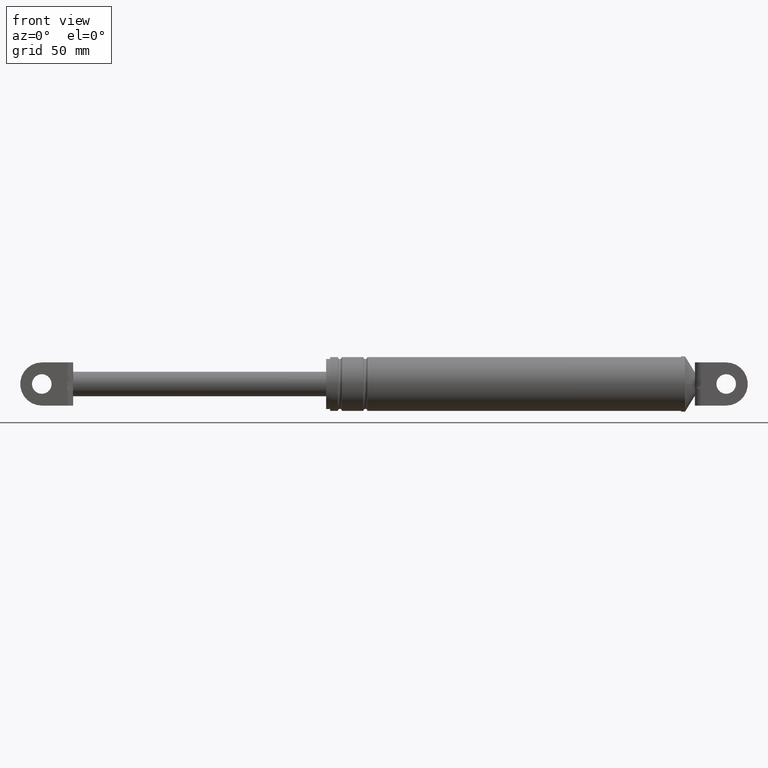
[diagram: clean part render]
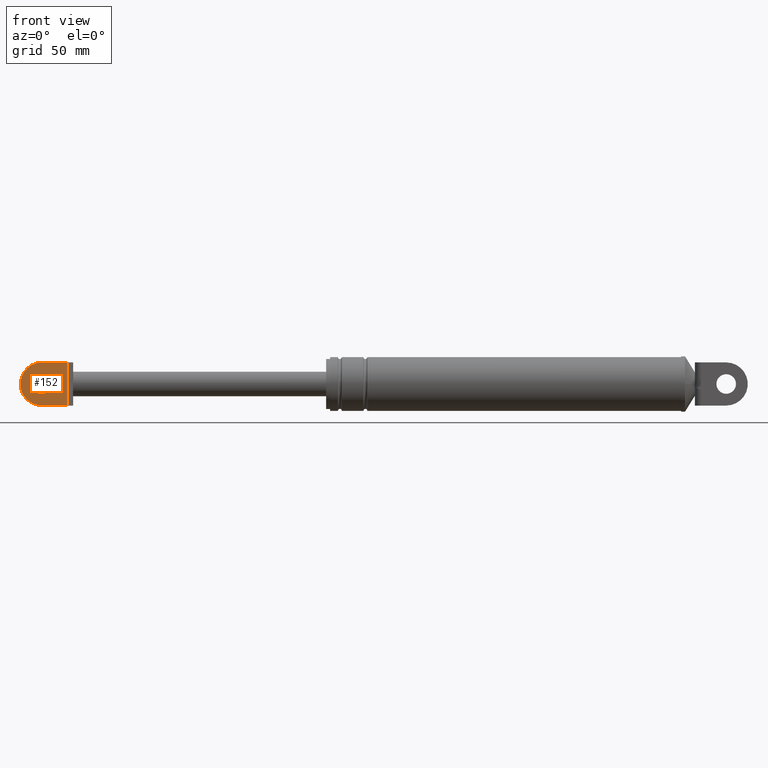
[diagram: same view with one face highlighted and labeled with its STEP entity id]
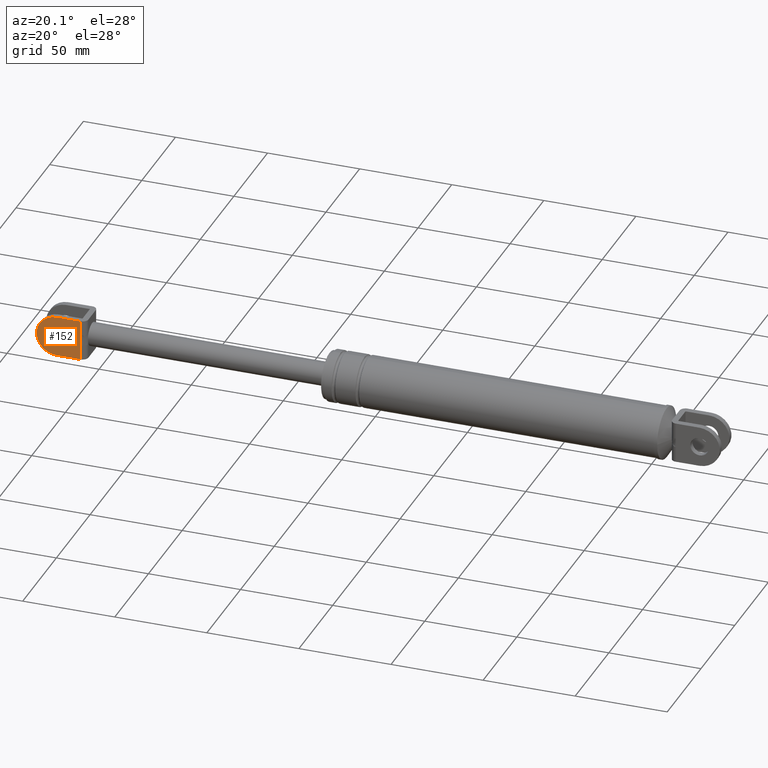
[diagram: same view with one face highlighted and labeled with its STEP entity id]
A machine part, front view. The second image highlights one B-rep face of the part: STEP entity #152.
A second angle (auxiliary view) of the same face is appended — the face is thin or edge-on in the first view.
In plain terms, the highlighted planar face has unit normal (0, -1, 0).
Its self-contained STEP definition (entity closure, byte-faithful):
#152=ADVANCED_FACE('',(#583,#584),#582,.T.);
#582=PLANE('',#1223);
#583=FACE_OUTER_BOUND('',#1224,.T.);
#584=FACE_BOUND('',#1225,.T.);
#1220=CARTESIAN_POINT('',(1.68369951810E+001,-8.69999700000E+000,1.90570805655E+002));
#1221=DIRECTION('',(0.00000000000E+000,-1.00000000000E+000,0.00000000000E+000));
#1222=DIRECTION('',(0.00000000000E+000,0.00000000000E+000,-1.00000000000E+000));
#1223=AXIS2_PLACEMENT_3D('',#1220,#1221,#1222);
#1224=EDGE_LOOP('',(#1588,#1589,#1590,#1591,#1592,#1593));
#1225=EDGE_LOOP('',(#1594,#1595));
#1588=ORIENTED_EDGE('',*,*,#1808,.F.);
#1589=ORIENTED_EDGE('',*,*,#1809,.T.);
#1590=ORIENTED_EDGE('',*,*,#1810,.T.);
#1591=ORIENTED_EDGE('',*,*,#1811,.T.);
#1592=ORIENTED_EDGE('',*,*,#1812,.T.);
#1593=ORIENTED_EDGE('',*,*,#1813,.T.);
#1594=ORIENTED_EDGE('',*,*,#1814,.F.);
#1595=ORIENTED_EDGE('',*,*,#1815,.F.);
#1808=EDGE_CURVE('',#2506,#2507,#2508,.T.);
#1809=EDGE_CURVE('',#2506,#2514,#2515,.T.);
#1810=EDGE_CURVE('',#2514,#2521,#2522,.T.);
#1811=EDGE_CURVE('',#2521,#2528,#2529,.T.);
#1812=EDGE_CURVE('',#2528,#2535,#2536,.T.);
#1813=EDGE_CURVE('',#2535,#2507,#2542,.T.);
#1814=EDGE_CURVE('',#2548,#2549,#2550,.T.);
#1815=EDGE_CURVE('',#2549,#2548,#2556,.T.);
#2506=VERTEX_POINT('',#3324);
#2507=VERTEX_POINT('',#3325);
#2508=LINE('',#3326,#3327);
#2514=VERTEX_POINT('',#3329);
#2515=LINE('',#3330,#3331);
#2521=VERTEX_POINT('',#3333);
#2522=(BOUNDED_CURVE() B_SPLINE_CURVE(3,(#3334,#3335,#3336,#3337,#3338,#3339,#3340,#3341,#3342,#3343),.UNSPECIFIED.,.F.,.F.) B_SPLINE_CURVE_WITH_KNOTS((4,2,2,2,4),(0.00000000000E+000,1.48458878572E-003,2.96917757145E-003,4.45376635717E-003,5.93835514290E-003),.UNSPECIFIED.) CURVE() GEOMETRIC_REPRESENTATION_ITEM() RATIONAL_B_SPLINE_CURVE((1.00000000000E+000,1.00000000000E+000,1.00000000000E+000,1.00000000000E+000,1.00000000000E+000,1.00000000000E+000,1.00000000000E+000,1.00000000000E+000,1.00000000000E+000,1.00000000000E+000)) REPRESENTATION_ITEM('') );
#2528=VERTEX_POINT('',#3344);
#2529=LINE('',#3345,#3346);
#2535=VERTEX_POINT('',#3348);
#2536=LINE('',#3349,#3350);
#2542=CIRCLE('',#3355,1.10000000000E+001);
#2548=VERTEX_POINT('',#3356);
#2549=VERTEX_POINT('',#3357);
#2550=CIRCLE('',#3361,5.00000000000E+000);
#2556=CIRCLE('',#3365,5.00000000000E+000);
#3324=CARTESIAN_POINT('',(4.30259114227E+001,-8.69999700000E+000,1.66370805655E+002));
#3325=CARTESIAN_POINT('',(3.02259104627E+001,-8.69999700000E+000,1.66370805655E+002));
#3326=CARTESIAN_POINT('',(4.30259114227E+001,-8.69999700000E+000,1.66370805655E+002));
#3327=VECTOR('',#3328,1.28000009599E+001);
#3328=DIRECTION('',(-1.00000000000E+000,0.00000000000E+000,0.00000000000E+000));
#3329=CARTESIAN_POINT('',(4.30259114227E+001,-8.69999700000E+000,1.74402214575E+002));
#3330=CARTESIAN_POINT('',(4.30259114227E+001,-8.69999700000E+000,1.66370805655E+002));
#3331=VECTOR('',#3332,8.03140892004E+000);
#3332=DIRECTION('',(0.00000000000E+000,0.00000000000E+000,1.00000000000E+000));
#3333=CARTESIAN_POINT('',(4.30259114227E+001,-8.69999700000E+000,1.80339396735E+002));
#3334=CARTESIAN_POINT('',(4.30259114227E+001,-8.69999700000E+000,1.74402214575E+002));
#3335=CARTESIAN_POINT('',(4.30259114227E+001,-8.69999700000E+000,1.74897077695E+002));
#3336=CARTESIAN_POINT('',(4.30514511801E+001,-8.69999700000E+000,1.75391384177E+002));
#3337=CARTESIAN_POINT('',(4.30966743184E+001,-8.69999700000E+000,1.76380095651E+002));
#3338=CARTESIAN_POINT('',(4.31150142773E+001,-8.69999700000E+000,1.76874550917E+002));
#3339=CARTESIAN_POINT('',(4.31150738398E+001,-8.69999700000E+000,1.77864314697E+002));
#3340=CARTESIAN_POINT('',(4.30967592183E+001,-8.69999700000E+000,1.78359551671E+002));
#3341=CARTESIAN_POINT('',(4.30515059508E+001,-8.69999700000E+000,1.79349137177E+002));
#3342=CARTESIAN_POINT('',(4.30259114227E+001,-8.69999700000E+000,1.79843828167E+002));
#3343=CARTESIAN_POINT('',(4.30259114227E+001,-8.69999700000E+000,1.80339396735E+002));
#3344=CARTESIAN_POINT('',(4.30259114227E+001,-8.69999700000E+000,1.88370805655E+002));
#3345=CARTESIAN_POINT('',(4.30259114227E+001,-8.69999700000E+000,1.80339396735E+002));
#3346=VECTOR('',#3347,8.03140892004E+000);
#3347=DIRECTION('',(0.00000000000E+000,0.00000000000E+000,1.00000000000E+000));
#3348=CARTESIAN_POINT('',(3.02259104627E+001,-8.69999700000E+000,1.88370805655E+002));
#3349=CARTESIAN_POINT('',(4.30259114227E+001,-8.69999700000E+000,1.88370805655E+002));
#3350=VECTOR('',#3351,1.28000009599E+001);
#3351=DIRECTION('',(-1.00000000000E+000,0.00000000000E+000,0.00000000000E+000));
#3352=CARTESIAN_POINT('',(3.02259114227E+001,-8.69999700000E+000,1.77370805655E+002));
#3353=DIRECTION('',(0.00000000000E+000,-1.00000000000E+000,0.00000000000E+000));
#3354=DIRECTION('',(-0.00000000000E+000,-0.00000000000E+000,-1.00000000000E+000));
#3355=AXIS2_PLACEMENT_3D('',#3352,#3353,#3354);
#3356=CARTESIAN_POINT('',(3.02259114227E+001,-8.69999700000E+000,1.72370805655E+002));
#3357=CARTESIAN_POINT('',(3.02259114227E+001,-8.69999700000E+000,1.82370805655E+002));
#3358=CARTESIAN_POINT('',(3.02259114227E+001,-8.69999700000E+000,1.77370805655E+002));
#3359=DIRECTION('',(-0.00000000000E+000,-1.00000000000E+000,0.00000000000E+000));
#3360=DIRECTION('',(-1.22460635382E-016,0.00000000000E+000,1.00000000000E+000));
#3361=AXIS2_PLACEMENT_3D('',#3358,#3359,#3360);
#3362=CARTESIAN_POINT('',(3.02259114227E+001,-8.69999700000E+000,1.77370805655E+002));
#3363=DIRECTION('',(-0.00000000000E+000,-1.00000000000E+000,0.00000000000E+000));
#3364=DIRECTION('',(-1.22460635382E-016,0.00000000000E+000,1.00000000000E+000));
#3365=AXIS2_PLACEMENT_3D('',#3362,#3363,#3364);